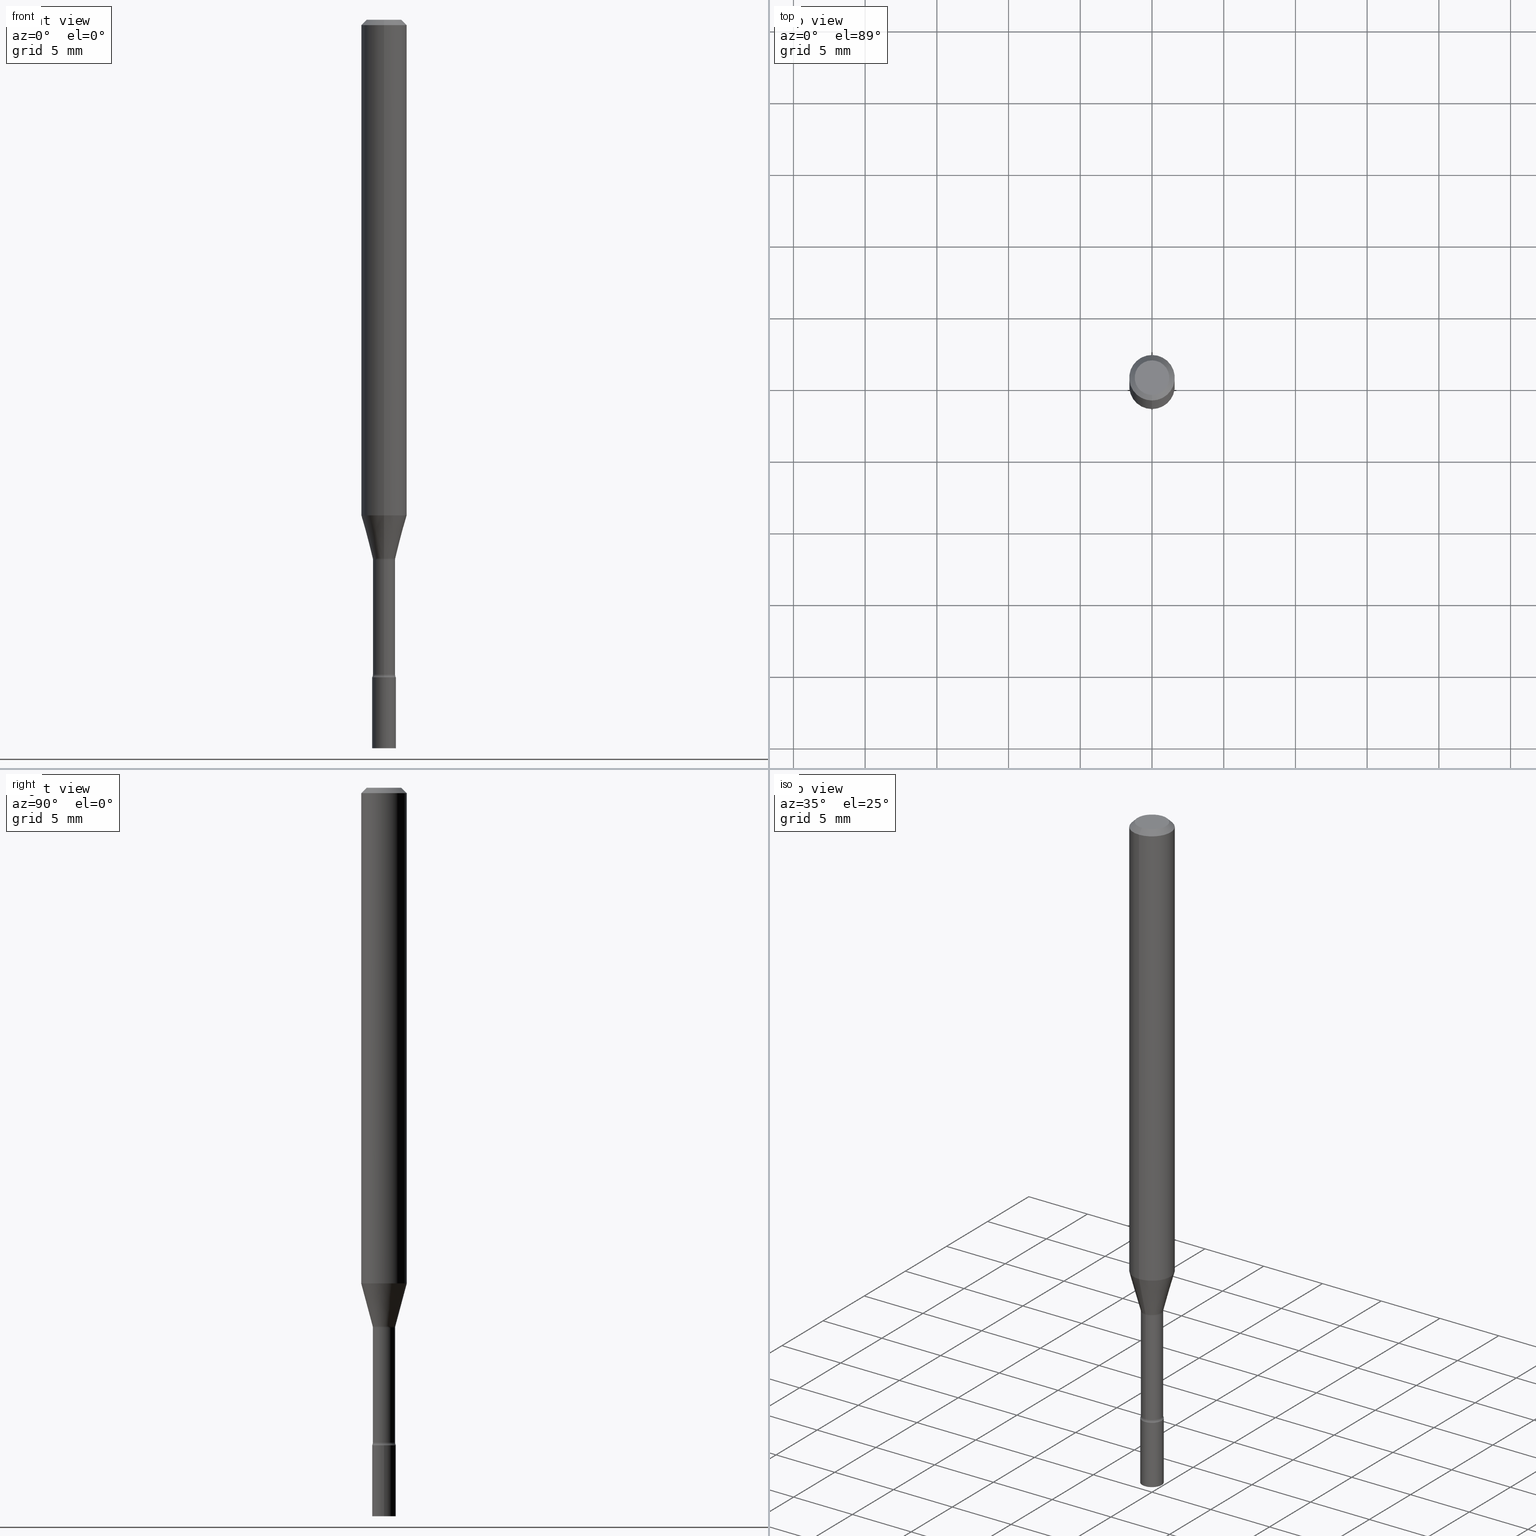
[diagram: canonical four-view strip — front | top / right | iso, engineering-drawing reading convention]
A machine part, canonical four-view strip (front | top / right | iso — engineering-drawing reading convention). The complete STEP part file that produces these views, byte-faithful:
ISO-10303-21;
HEADER;
FILE_DESCRIPTION (( 'STEP AP203' ),
    '1' );
FILE_NAME ('09381.STEP',
    '2024-03-08T23:32:06',
    ( '' ),
    ( '' ),
    'SwSTEP 2.0',
    'SolidWorks 2023',
    '' );
FILE_SCHEMA (( 'CONFIG_CONTROL_DESIGN' ));
ENDSEC;

DATA;
#1 = APPROVAL_DATE_TIME ( #289, #374 ) ;
#2 = DIRECTION ( 'NONE',  ( -2.445806492688776784E-29, 3.490997752550010367E-15, 1.000000000000000000 ) ) ;
#3 = EDGE_LOOP ( 'NONE', ( #406, #186, #35, #179 ) ) ;
#4 = CARTESIAN_POINT ( 'NONE',  ( 4.414071195164171423E-29, -6.302123816611877952E-15, -1.804999999999999938 ) ) ;
#5 = PERSON_AND_ORGANIZATION ( #212, #377 ) ;
#6 = APPROVAL_PERSON_ORGANIZATION ( #5, #279, #87 ) ;
#7 = DIRECTION ( 'NONE',  ( 1.000000000000000000, -6.982962677686265922E-15, 4.876176775795935793E-29 ) ) ;
#8 = APPROVAL_ROLE ( '' ) ;
#9 = DIRECTION ( 'NONE',  ( -1.000000000000000000, 6.982962677686265922E-15, -4.883557194083112340E-29 ) ) ;
#10 = FACE_OUTER_BOUND ( 'NONE', #286, .T. ) ;
#11 = VERTEX_POINT ( 'NONE', #27 ) ;
#12 = CARTESIAN_POINT ( 'NONE',  ( 3.624623557180060645E-29, -5.173570652371943867E-15, -1.481974787463811394 ) ) ;
#13 = AXIS2_PLACEMENT_3D ( 'NONE', #170, #92, #332 ) ;
#14 = ORIENTED_EDGE ( 'NONE', *, *, #329, .T. ) ;
#15 = ADVANCED_FACE ( 'NONE', ( #234 ), #114, .T. ) ;
#16 = DIRECTION ( 'NONE',  ( 1.000000000000000000, -6.982962677686258033E-15, 0.000000000000000000 ) ) ;
#17 = VERTEX_POINT ( 'NONE', #512 ) ;
#18 = DIRECTION ( 'NONE',  ( -2.445806492688777345E-29, 3.490997752550009973E-15, 1.000000000000000000 ) ) ;
#19 = ORIENTED_EDGE ( 'NONE', *, *, #74, .F. ) ;
#20 = DIRECTION ( 'NONE',  ( -6.982962677686265133E-15, -1.000000000000000000, 0.000000000000000000 ) ) ;
#21 = ORIENTED_EDGE ( 'NONE', *, *, #323, .T. ) ;
#22 = TOROIDAL_SURFACE ( 'NONE', #174, 0.04555000000000000021, 0.01500000000000002547 ) ;
#23 = APPLICATION_PROTOCOL_DEFINITION ( 'international standard', 'config_control_design', 1994, #482 ) ;
#24 = EDGE_CURVE ( 'NONE', #17, #227, #491, .T. ) ;
#25 = ORIENTED_EDGE ( 'NONE', *, *, #296, .F. ) ;
#26 = DIRECTION ( 'NONE',  ( 1.000000000000000000, -6.982962677686258033E-15, 0.000000000000000000 ) ) ;
#27 = CARTESIAN_POINT ( 'NONE',  ( 2.309263891220770403E-16, 0.03249999999999374917, -1.804999999999999938 ) ) ;
#28 = CARTESIAN_POINT ( 'NONE',  ( 4.414071195164171423E-29, -6.302123816611877952E-15, -1.804999999999999938 ) ) ;
#29 = DIRECTION ( 'NONE',  ( 1.000000000000000000, -6.982962677686258033E-15, 0.000000000000000000 ) ) ;
#30 = VECTOR ( 'NONE', #249, 39.37007874015748143 ) ;
#31 = AXIS2_PLACEMENT_3D ( 'NONE', #34, #391, #152 ) ;
#32 = EDGE_CURVE ( 'NONE', #239, #11, #173, .T. ) ;
#33 = MANIFOLD_SOLID_BREP ( 'Body-Move/Copy2[2]', #310 ) ;
#34 = CARTESIAN_POINT ( 'NONE',  ( 0.000000000000000000, 0.000000000000000000, 0.000000000000000000 ) ) ;
#35 = ORIENTED_EDGE ( 'NONE', *, *, #143, .T. ) ;
#36 = CC_DESIGN_PERSON_AND_ORGANIZATION_ASSIGNMENT ( #430, #464, ( #159 ) ) ;
#37 = PERSON_AND_ORGANIZATION_ROLE ( 'design_owner' ) ;
#38 = DIRECTION ( 'NONE',  ( -2.445468806185136597E-29, 3.491481338843145583E-15, 1.000000000000000000 ) ) ;
#39 = SHAPE_DEFINITION_REPRESENTATION ( #382, #67 ) ;
#40 = DIRECTION ( 'NONE',  ( -6.982962677686265922E-15, -1.000000000000000000, 0.000000000000000000 ) ) ;
#41 =( GEOMETRIC_REPRESENTATION_CONTEXT ( 3 ) GLOBAL_UNCERTAINTY_ASSIGNED_CONTEXT ( ( #208 ) ) GLOBAL_UNIT_ASSIGNED_CONTEXT ( ( #506, #505, #189 ) ) REPRESENTATION_CONTEXT ( 'NONE', 'WORKASPACE' ) );
#42 = PERSON_AND_ORGANIZATION ( #212, #377 ) ;
#43 = APPROVAL ( #116, 'UNSPECIFIED' ) ;
#44 = DIRECTION ( 'NONE',  ( 2.438088387897960049E-29, -3.491481338843145188E-15, -1.000000000000000000 ) ) ;
#45 = CARTESIAN_POINT ( 'NONE',  ( 4.364351673553919652E-16, 0.06249999999999995143, -0.01500000000000024751 ) ) ;
#46 = CARTESIAN_POINT ( 'NONE',  ( 2.207024792658457989E-16, 0.03106111260565874721, -1.478092501787273694 ) ) ;
#47 = ORIENTED_EDGE ( 'NONE', *, *, #314, .F. ) ;
#48 = AXIS2_PLACEMENT_3D ( 'NONE', #272, #397, #465 ) ;
#49 = CIRCLE ( 'NONE', #334, 0.04749999999999999362 ) ;
#50 = DESIGN_CONTEXT ( 'detailed design', #401, 'design' ) ;
#51 = DIRECTION ( 'NONE',  ( -2.445468806185136597E-29, 3.491481338843145583E-15, 1.000000000000000000 ) ) ;
#52 = ORIENTED_EDGE ( 'NONE', *, *, #266, .F. ) ;
#53 = LINE ( 'NONE', #61, #77 ) ;
#54 = FACE_OUTER_BOUND ( 'NONE', #471, .T. ) ;
#55 = ADVANCED_FACE ( 'NONE', ( #395 ), #473, .F. ) ;
#56 = ORIENTED_EDGE ( 'NONE', *, *, #390, .T. ) ;
#57 = AXIS2_PLACEMENT_3D ( 'NONE', #484, #44, #243 ) ;
#58 = CARTESIAN_POINT ( 'NONE',  ( -4.364351673553916201E-16, -0.06250000000000000000, 2.181873595343755987E-16 ) ) ;
#59 = CIRCLE ( 'NONE', #368, 0.03055000000000000077 ) ;
#60 = ORIENTED_EDGE ( 'NONE', *, *, #365, .T. ) ;
#61 = CARTESIAN_POINT ( 'NONE',  ( -4.287811248607203282E-16, -0.06250000000000005551, -0.01499999999999981209 ) ) ;
#62 = EDGE_LOOP ( 'NONE', ( #112, #188, #218, #498 ) ) ;
#63 = LINE ( 'NONE', #58, #107 ) ;
#64 = ORIENTED_EDGE ( 'NONE', *, *, #360, .T. ) ;
#65 = PRODUCT ( '09381', '09381', '', ( #113 ) ) ;
#66 = EDGE_CURVE ( 'NONE', #379, #99, #149, .T. ) ;
#67 = ADVANCED_BREP_SHAPE_REPRESENTATION ( '09381', ( #223, #33, #31 ), #41 ) ;
#68 = EDGE_LOOP ( 'NONE', ( #245, #412, #446, #388 ) ) ;
#69 = AXIS2_PLACEMENT_3D ( 'NONE', #485, #127, #290 ) ;
#70 = LOCAL_TIME ( 18, 32, 6.000000000000000000, #480 ) ;
#71 = PLANE ( 'NONE',  #416 ) ;
#72 = DIRECTION ( 'NONE',  ( -2.445806492688777345E-29, 3.490997752550009973E-15, 1.000000000000000000 ) ) ;
#73 = ORIENTED_EDGE ( 'NONE', *, *, #329, .F. ) ;
#74 = EDGE_CURVE ( 'NONE', #257, #453, #192, .T. ) ;
#75 = CARTESIAN_POINT ( 'NONE',  ( -0.03250000000000000111, -6.411616858027052188E-15, -1.804999999999999938 ) ) ;
#76 = CONICAL_SURFACE ( 'NONE', #432, 0.03106111260566390975, 0.2617993877991491858 ) ;
#77 = VECTOR ( 'NONE', #255, 39.37007874015748143 ) ;
#78 = ORIENTED_EDGE ( 'NONE', *, *, #256, .T. ) ;
#79 = DIRECTION ( 'NONE',  ( -6.982962677686266711E-15, -1.000000000000000000, 3.490997752550010367E-15 ) ) ;
#80 = ADVANCED_FACE ( 'NONE', ( #241 ), #275, .F. ) ;
#81 = DIRECTION ( 'NONE',  ( 1.839019923739592821E-15, 0.2588190451025239036, 0.9659258262890675351 ) ) ;
#82 = EDGE_LOOP ( 'NONE', ( #339, #78, #177, #140 ) ) ;
#83 = CARTESIAN_POINT ( 'NONE',  ( 0.03250000000000000111, -7.209908964711093729E-15, -2.000000000000000000 ) ) ;
#84 = CALENDAR_DATE ( 2024, 8, 3 ) ;
#85 = DIRECTION ( 'NONE',  ( -6.982962677686265922E-15, -1.000000000000000000, 3.483106191921935554E-15 ) ) ;
#86 = EDGE_CURVE ( 'NONE', #169, #135, #501, .T. ) ;
#87 = APPROVAL_ROLE ( '' ) ;
#88 = DIRECTION ( 'NONE',  ( -6.982962677686265922E-15, -1.000000000000000000, 3.490997752550009579E-15 ) ) ;
#89 = ORIENTED_EDGE ( 'NONE', *, *, #172, .T. ) ;
#90 = VECTOR ( 'NONE', #410, 39.37007874015748143 ) ;
#91 = LINE ( 'NONE', #45, #415 ) ;
#92 = DIRECTION ( 'NONE',  ( 2.445806492688777345E-29, -3.490997752550009973E-15, -1.000000000000000000 ) ) ;
#93 = ORIENTED_EDGE ( 'NONE', *, *, #198, .T. ) ;
#94 = CARTESIAN_POINT ( 'NONE',  ( 4.890937612370273194E-29, -6.982962677686291165E-15, -2.000000000000000000 ) ) ;
#95 = ORIENTED_EDGE ( 'NONE', *, *, #109, .T. ) ;
#96 = AXIS2_PLACEMENT_3D ( 'NONE', #153, #319, #79 ) ;
#97 = CARTESIAN_POINT ( 'NONE',  ( 4.440892098500956497E-16, 0.06249999999999521910, -1.360760976698174973 ) ) ;
#98 = SECURITY_CLASSIFICATION ( '', '', #207 ) ;
#99 = VERTEX_POINT ( 'NONE', #315 ) ;
#100 = DIRECTION ( 'NONE',  ( -6.982962677686265922E-15, -1.000000000000000000, 3.490997752550009973E-15 ) ) ;
#101 = ORIENTED_EDGE ( 'NONE', *, *, #32, .F. ) ;
#102 = EDGE_CURVE ( 'NONE', #11, #239, #219, .T. ) ;
#103 = DIRECTION ( 'NONE',  ( -6.982962677686265922E-15, -1.000000000000000000, 0.000000000000000000 ) ) ;
#104 = ORIENTED_EDGE ( 'NONE', *, *, #198, .F. ) ;
#105 = DIRECTION ( 'NONE',  ( -2.445806492688777345E-29, 3.490997752550009973E-15, 1.000000000000000000 ) ) ;
#106 = ORIENTED_EDGE ( 'NONE', *, *, #109, .F. ) ;
#107 = VECTOR ( 'NONE', #221, 39.37007874015748143 ) ;
#108 = DIRECTION ( 'NONE',  ( 2.445806492688776784E-29, -3.490997752550010367E-15, -1.000000000000000000 ) ) ;
#109 = EDGE_CURVE ( 'NONE', #379, #488, #392, .T. ) ;
#110 = DIRECTION ( 'NONE',  ( -2.445806492688777345E-29, 3.490997752550009973E-15, 1.000000000000000000 ) ) ;
#111 = APPROVAL_ROLE ( '' ) ;
#112 = ORIENTED_EDGE ( 'NONE', *, *, #451, .F. ) ;
#113 = MECHANICAL_CONTEXT ( 'NONE', #482, 'mechanical' ) ;
#114 = CYLINDRICAL_SURFACE ( 'NONE', #318, 0.06250000000000000000 ) ;
#115 = CONICAL_SURFACE ( 'NONE', #492, 0.03106111260566390975, 0.2617993877991491858 ) ;
#116 = APPROVAL_STATUS ( 'not_yet_approved' ) ;
#117 = PRODUCT_RELATED_PRODUCT_CATEGORY ( 'detail', '', ( #65 ) ) ;
#118 = DATE_TIME_ROLE ( 'classification_date' ) ;
#119 = FACE_OUTER_BOUND ( 'NONE', #455, .T. ) ;
#120 = PERSON_AND_ORGANIZATION ( #212, #377 ) ;
#121 = DIRECTION ( 'NONE',  ( -1.807323732225322645E-15, -0.2588190451025171313, 0.9659258262890693114 ) ) ;
#122 = ORIENTED_EDGE ( 'NONE', *, *, #350, .F. ) ;
#123 = AXIS2_PLACEMENT_3D ( 'NONE', #252, #454, #184 ) ;
#124 = DATE_TIME_ROLE ( 'creation_date' ) ;
#125 = DIRECTION ( 'NONE',  ( 4.937700262164548042E-15, 0.7071067811865451302, -0.7071067811865499042 ) ) ;
#126 = EDGE_CURVE ( 'NONE', #169, #278, #355, .T. ) ;
#127 = DIRECTION ( 'NONE',  ( -2.445806492688777345E-29, 3.490997752550009973E-15, 1.000000000000000000 ) ) ;
#128 = ORIENTED_EDGE ( 'NONE', *, *, #305, .F. ) ;
#129 = CARTESIAN_POINT ( 'NONE',  ( -3.180739499685659028E-16, -0.04555000000000634236, -1.797604224178626975 ) ) ;
#130 = CIRCLE ( 'NONE', #165, 0.01500000000000007924 ) ;
#131 = CIRCLE ( 'NONE', #123, 0.06250000000000000000 ) ;
#132 = CARTESIAN_POINT ( 'NONE',  ( 3.615128237665912091E-29, -5.160017601800393003E-15, -1.478092501787273694 ) ) ;
#133 = VERTEX_POINT ( 'NONE', #515 ) ;
#134 = CARTESIAN_POINT ( 'NONE',  ( 3.624123114295598298E-29, -5.174287315065934180E-15, -1.481974787463811394 ) ) ;
#135 = VERTEX_POINT ( 'NONE', #312 ) ;
#136 = DIRECTION ( 'NONE',  ( -2.445806492688777345E-29, 3.490997752550009973E-15, 1.000000000000000000 ) ) ;
#137 = VERTEX_POINT ( 'NONE', #75 ) ;
#138 = VECTOR ( 'NONE', #276, 39.37007874015748143 ) ;
#139 = AXIS2_PLACEMENT_3D ( 'NONE', #420, #175, #380 ) ;
#140 = ORIENTED_EDGE ( 'NONE', *, *, #126, .F. ) ;
#141 = CARTESIAN_POINT ( 'NONE',  ( 3.668709739033173181E-31, -5.236496628825025190E-17, -0.01500000000000003067 ) ) ;
#142 = VERTEX_POINT ( 'NONE', #196 ) ;
#143 = EDGE_CURVE ( 'NONE', #298, #278, #285, .T. ) ;
#144 = CALENDAR_DATE ( 2024, 8, 3 ) ;
#145 = DIRECTION ( 'NONE',  ( -2.445806492688777345E-29, 3.490997752550010367E-15, 1.000000000000000000 ) ) ;
#146 = EDGE_CURVE ( 'NONE', #298, #99, #270, .T. ) ;
#147 = DIRECTION ( 'NONE',  ( -6.982962677686265922E-15, -1.000000000000000000, 0.000000000000000000 ) ) ;
#148 = DIRECTION ( 'NONE',  ( -2.445806492688777345E-29, 3.490997752550009973E-15, 1.000000000000000000 ) ) ;
#149 = CIRCLE ( 'NONE', #229, 0.06250000000000000000 ) ;
#150 = CIRCLE ( 'NONE', #277, 0.03250000000000000111 ) ;
#151 = CC_DESIGN_DATE_AND_TIME_ASSIGNMENT ( #423, #124, ( #159 ) ) ;
#152 = DIRECTION ( 'NONE',  ( 1.000000000000000000, 0.000000000000000000, 0.000000000000000000 ) ) ;
#153 = CARTESIAN_POINT ( 'NONE',  ( 7.077401210494453519E-46, -1.010185875030906767E-31, -2.893688127679296036E-17 ) ) ;
#154 = CARTESIAN_POINT ( 'NONE',  ( 4.395985056095465532E-29, -6.276301603345287291E-15, -1.797604224178627197 ) ) ;
#155 = CARTESIAN_POINT ( 'NONE',  ( 0.000000000000000000, 0.000000000000000000, 0.000000000000000000 ) ) ;
#156 = ADVANCED_FACE ( 'NONE', ( #359 ), #405, .T. ) ;
#157 = CC_DESIGN_APPROVAL ( #43, ( #159 ) ) ;
#158 = DIRECTION ( 'NONE',  ( 1.000000000000000000, -7.105427357601001070E-15, 4.926309586318022696E-29 ) ) ;
#159 = PRODUCT_DEFINITION ( 'UNKNOWN', '', #425, #50 ) ;
#160 = DIRECTION ( 'NONE',  ( 1.000000000000000000, -6.982962677686265922E-15, 4.876176775795935232E-29 ) ) ;
#161 = ORIENTED_EDGE ( 'NONE', *, *, #204, .T. ) ;
#162 = ADVANCED_FACE ( 'NONE', ( #371 ), #342, .T. ) ;
#163 = PERSON_AND_ORGANIZATION ( #212, #377 ) ;
#164 = LINE ( 'NONE', #251, #90 ) ;
#165 = AXIS2_PLACEMENT_3D ( 'NONE', #129, #9, #364 ) ;
#166 = AXIS2_PLACEMENT_3D ( 'NONE', #94, #497, #503 ) ;
#167 = CYLINDRICAL_SURFACE ( 'NONE', #293, 0.03250000000000000111 ) ;
#168 = LINE ( 'NONE', #321, #30 ) ;
#169 = VERTEX_POINT ( 'NONE', #441 ) ;
#170 = CARTESIAN_POINT ( 'NONE',  ( 3.668709739033173181E-31, -5.236496628825025190E-17, -0.01500000000000003067 ) ) ;
#171 = ORIENTED_EDGE ( 'NONE', *, *, #143, .F. ) ;
#172 = EDGE_CURVE ( 'NONE', #169, #239, #130, .T. ) ;
#173 = CIRCLE ( 'NONE', #301, 0.03250000000000000111 ) ;
#174 = AXIS2_PLACEMENT_3D ( 'NONE', #134, #335, #100 ) ;
#175 = DIRECTION ( 'NONE',  ( -2.445806492688777345E-29, 3.490997752550009973E-15, 1.000000000000000000 ) ) ;
#176 = CC_DESIGN_APPROVAL ( #279, ( #98 ) ) ;
#177 = ORIENTED_EDGE ( 'NONE', *, *, #333, .F. ) ;
#178 = LINE ( 'NONE', #456, #483 ) ;
#179 = ORIENTED_EDGE ( 'NONE', *, *, #333, .T. ) ;
#180 = ADVANCED_FACE ( 'NONE', ( #119 ), #214, .T. ) ;
#181 = DIRECTION ( 'NONE',  ( 1.000000000000000000, -7.105427357601001070E-15, 4.926309586318022696E-29 ) ) ;
#182 = EDGE_LOOP ( 'NONE', ( #341, #95, #381, #47 ) ) ;
#183 = AXIS2_PLACEMENT_3D ( 'NONE', #201, #445, #85 ) ;
#184 = DIRECTION ( 'NONE',  ( -6.982962677686265922E-15, -1.000000000000000000, 4.370956789862821150E-15 ) ) ;
#185 = AXIS2_PLACEMENT_3D ( 'NONE', #383, #216, #373 ) ;
#186 = ORIENTED_EDGE ( 'NONE', *, *, #472, .F. ) ;
#187 = LENGTH_MEASURE_WITH_UNIT ( LENGTH_MEASURE( 0.02539999999999999897 ), #191 );
#188 = ORIENTED_EDGE ( 'NONE', *, *, #305, .T. ) ;
#189 =( NAMED_UNIT ( * ) SI_UNIT ( $, .STERADIAN. ) SOLID_ANGLE_UNIT ( ) );
#190 = CARTESIAN_POINT ( 'NONE',  ( 3.624123114295598298E-29, -5.174287315065934180E-15, -1.481974787463811394 ) ) ;
#191 =( LENGTH_UNIT ( ) NAMED_UNIT ( * ) SI_UNIT ( $, .METRE. ) );
#192 = CIRCLE ( 'NONE', #96, 0.04749999999999999362 ) ;
#193 = DIRECTION ( 'NONE',  ( -2.445806492688777345E-29, 3.490997752550009973E-15, 1.000000000000000000 ) ) ;
#194 = TOROIDAL_SURFACE ( 'NONE', #139, 0.04555000000000006960, 0.01500000000000008271 ) ;
#195 = DIRECTION ( 'NONE',  ( 6.982962677686265922E-15, 1.000000000000000000, -3.490997752550010367E-15 ) ) ;
#196 = CARTESIAN_POINT ( 'NONE',  ( 2.170708057747545912E-16, 0.03054999999999482088, -1.481974787463811394 ) ) ;
#197 = DIRECTION ( 'NONE',  ( -6.982962677686265922E-15, -1.000000000000000000, 3.490997752550009973E-15 ) ) ;
#198 = EDGE_CURVE ( 'NONE', #257, #488, #91, .T. ) ;
#199 = DIRECTION ( 'NONE',  ( -6.982962677686265922E-15, -1.000000000000000000, 0.000000000000000000 ) ) ;
#200 = DATE_AND_TIME ( #213, #246 ) ;
#201 = CARTESIAN_POINT ( 'NONE',  ( 3.668709739033173181E-31, -5.236496628825025190E-17, -0.01500000000000003067 ) ) ;
#202 = CARTESIAN_POINT ( 'NONE',  ( -2.168985900527253100E-16, -0.03106111260566906881, -1.478092501787273694 ) ) ;
#203 = ORIENTED_EDGE ( 'NONE', *, *, #256, .F. ) ;
#204 = EDGE_CURVE ( 'NONE', #17, #137, #168, .T. ) ;
#205 = FACE_OUTER_BOUND ( 'NONE', #68, .T. ) ;
#206 = CC_DESIGN_PERSON_AND_ORGANIZATION_ASSIGNMENT ( #120, #404, ( #425 ) ) ;
#207 = SECURITY_CLASSIFICATION_LEVEL ( 'unclassified' ) ;
#208 = UNCERTAINTY_MEASURE_WITH_UNIT (LENGTH_MEASURE( 1.000000000000000082E-05 ), #506, 'distance_accuracy_value', 'NONE');
#209 = CARTESIAN_POINT ( 'NONE',  ( -2.269462870247597680E-16, -0.03250000000000634326, -1.804999999999999938 ) ) ;
#210 = CIRCLE ( 'NONE', #183, 0.06250000000000000000 ) ;
#211 = APPROVAL_PERSON_ORGANIZATION ( #469, #43, #111 ) ;
#212 = PERSON ( 'UNSPECIFIED', 'UNSPECIFIED', 'UNSPECIFIED', ('UNSPECIFIED'), ('UNSPECIFIED'), ('UNSPECIFIED') ) ;
#213 = CALENDAR_DATE ( 2024, 8, 3 ) ;
#214 = PLANE ( 'NONE',  #57 ) ;
#215 = ORIENTED_EDGE ( 'NONE', *, *, #360, .F. ) ;
#216 = DIRECTION ( 'NONE',  ( -2.445468806185136597E-29, 3.491481338843145583E-15, 1.000000000000000000 ) ) ;
#217 = CARTESIAN_POINT ( 'NONE',  ( 3.236522161387617759E-16, 0.04554999999999483073, -1.481974787463811616 ) ) ;
#218 = ORIENTED_EDGE ( 'NONE', *, *, #102, .T. ) ;
#219 = CIRCLE ( 'NONE', #449, 0.03250000000000000111 ) ;
#220 = CONICAL_SURFACE ( 'NONE', #13, 0.06250000000000000000, 0.7853981633974483900 ) ;
#221 = DIRECTION ( 'NONE',  ( -2.445806492688777345E-29, 3.490997752550010367E-15, 1.000000000000000000 ) ) ;
#222 = EDGE_LOOP ( 'NONE', ( #336, #21 ) ) ;
#223 = MANIFOLD_SOLID_BREP ( 'Body-Move/Copy2[1]', #376 ) ;
#224 = DIRECTION ( 'NONE',  ( -2.445468806185136877E-29, 3.491481338843145188E-15, 1.000000000000000000 ) ) ;
#225 = ORIENTED_EDGE ( 'NONE', *, *, #24, .T. ) ;
#226 = FACE_OUTER_BOUND ( 'NONE', #331, .T. ) ;
#227 = VERTEX_POINT ( 'NONE', #83 ) ;
#228 = CC_DESIGN_DATE_AND_TIME_ASSIGNMENT ( #200, #118, ( #98 ) ) ;
#229 = AXIS2_PLACEMENT_3D ( 'NONE', #353, #110, #507 ) ;
#230 = DIRECTION ( 'NONE',  ( -2.445806492688777345E-29, 3.490997752550009973E-15, 1.000000000000000000 ) ) ;
#231 = AXIS2_PLACEMENT_3D ( 'NONE', #217, #181, #494 ) ;
#232 = ORIENTED_EDGE ( 'NONE', *, *, #296, .T. ) ;
#233 = CARTESIAN_POINT ( 'NONE',  ( 3.316907271900976096E-16, 0.04749999999999999362, -1.802908338845219502E-16 ) ) ;
#234 = FACE_OUTER_BOUND ( 'NONE', #182, .T. ) ;
#235 = CC_DESIGN_PERSON_AND_ORGANIZATION_ASSIGNMENT ( #363, #280, ( #98 ) ) ;
#236 = DIRECTION ( 'NONE',  ( -6.982962677686265922E-15, -1.000000000000000000, 3.490997752550009973E-15 ) ) ;
#237 = CARTESIAN_POINT ( 'NONE',  ( 3.615128237665912091E-29, -5.160017601800393003E-15, -1.478092501787273694 ) ) ;
#238 = AXIS2_PLACEMENT_3D ( 'NONE', #402, #324, #247 ) ;
#239 = VERTEX_POINT ( 'NONE', #209 ) ;
#240 = ORIENTED_EDGE ( 'NONE', *, *, #345, .T. ) ;
#241 = FACE_OUTER_BOUND ( 'NONE', #62, .T. ) ;
#242 = COORDINATED_UNIVERSAL_TIME_OFFSET ( 5, 0, .BEHIND. ) ;
#243 = DIRECTION ( 'NONE',  ( -1.000000000000000000, 6.982962677686265922E-15, -4.876176775795935793E-29 ) ) ;
#244 = ADVANCED_FACE ( 'NONE', ( #205 ), #76, .T. ) ;
#245 = ORIENTED_EDGE ( 'NONE', *, *, #472, .T. ) ;
#246 = LOCAL_TIME ( 18, 32, 6.000000000000000000, #366 ) ;
#247 = DIRECTION ( 'NONE',  ( 6.982962677686265922E-15, 1.000000000000000000, -3.483106191921935554E-15 ) ) ;
#248 = CARTESIAN_POINT ( 'NONE',  ( -2.133295098032791645E-16, -0.03055000000000517371, -1.481974787463811394 ) ) ;
#249 = DIRECTION ( 'NONE',  ( -2.445468806185136877E-29, 3.491481338843145188E-15, 1.000000000000000000 ) ) ;
#250 = ADVANCED_FACE ( 'NONE', ( #292 ), #481, .T. ) ;
#251 = CARTESIAN_POINT ( 'NONE',  ( 2.170708057747105136E-16, 0.03054999999999999036, -1.066499813404027654E-16 ) ) ;
#252 = CARTESIAN_POINT ( 'NONE',  ( 3.328158031805917225E-29, -4.750413511411083596E-15, -1.360760976698174529 ) ) ;
#253 = CC_DESIGN_PERSON_AND_ORGANIZATION_ASSIGNMENT ( #511, #37, ( #65 ) ) ;
#254 = ORIENTED_EDGE ( 'NONE', *, *, #32, .T. ) ;
#255 = DIRECTION ( 'NONE',  ( -4.851104656540964275E-15, -0.7071067811865500152, -0.7071067811865450192 ) ) ;
#256 = EDGE_CURVE ( 'NONE', #135, #142, #164, .T. ) ;
#257 = VERTEX_POINT ( 'NONE', #288 ) ;
#258 = AXIS2_PLACEMENT_3D ( 'NONE', #389, #38, #29 ) ;
#259 = CIRCLE ( 'NONE', #443, 0.06250000000000000000 ) ;
#260 = DIRECTION ( 'NONE',  ( -6.982962677686265922E-15, -1.000000000000000000, 3.483106191921935554E-15 ) ) ;
#261 = ORIENTED_EDGE ( 'NONE', *, *, #66, .T. ) ;
#262 = CYLINDRICAL_SURFACE ( 'NONE', #185, 0.03250000000000000111 ) ;
#263 = EDGE_LOOP ( 'NONE', ( #439, #225, #60, #215 ) ) ;
#264 = DIRECTION ( 'NONE',  ( -6.982962677686266711E-15, -1.000000000000000000, 3.490997752550010367E-15 ) ) ;
#265 = EDGE_LOOP ( 'NONE', ( #203, #375, #414, #73 ) ) ;
#266 = EDGE_CURVE ( 'NONE', #424, #379, #283, .T. ) ;
#267 = CARTESIAN_POINT ( 'NONE',  ( 4.440892098500960442E-16, 0.06249999999999995143, -0.01500000000000024751 ) ) ;
#268 = AXIS2_PLACEMENT_3D ( 'NONE', #132, #452, #411 ) ;
#269 = CARTESIAN_POINT ( 'NONE',  ( 4.414680719303243494E-29, -6.301250943352767922E-15, -1.804999999999999938 ) ) ;
#270 = LINE ( 'NONE', #322, #518 ) ;
#271 = COORDINATED_UNIVERSAL_TIME_OFFSET ( 5, 0, .BEHIND. ) ;
#272 = CARTESIAN_POINT ( 'NONE',  ( 4.396592082780858738E-29, -6.275432306581991000E-15, -1.797604224178627197 ) ) ;
#273 = EDGE_CURVE ( 'NONE', #488, #463, #210, .T. ) ;
#274 = FACE_OUTER_BOUND ( 'NONE', #222, .T. ) ;
#275 = TOROIDAL_SURFACE ( 'NONE', #440, 0.04555000000000006960, 0.01500000000000008271 ) ;
#276 = DIRECTION ( 'NONE',  ( -2.445806492688777345E-29, 3.490997752550010367E-15, 1.000000000000000000 ) ) ;
#277 = AXIS2_PLACEMENT_3D ( 'NONE', #299, #413, #16 ) ;
#278 = VERTEX_POINT ( 'NONE', #248 ) ;
#279 = APPROVAL ( #370, 'UNSPECIFIED' ) ;
#280 = PERSON_AND_ORGANIZATION_ROLE ( 'classification_officer' ) ;
#281 = DIRECTION ( 'NONE',  ( 7.105427357601001859E-15, 1.000000000000000000, 0.000000000000000000 ) ) ;
#282 = DATE_AND_TIME ( #477, #327 ) ;
#283 = LINE ( 'NONE', #46, #408 ) ;
#284 = AXIS2_PLACEMENT_3D ( 'NONE', #487, #478, #88 ) ;
#285 = CIRCLE ( 'NONE', #508, 0.01500000000000002720 ) ;
#286 = EDGE_LOOP ( 'NONE', ( #346, #461, #56, #104 ) ) ;
#287 = AXIS2_PLACEMENT_3D ( 'NONE', #351, #354, #475 ) ;
#288 = CARTESIAN_POINT ( 'NONE',  ( 3.840629472727447874E-16, 0.04749999999999999362, -1.947592745229184365E-16 ) ) ;
#289 = DATE_AND_TIME ( #84, #70 ) ;
#290 = DIRECTION ( 'NONE',  ( -6.982962677686265922E-15, -1.000000000000000000, 0.000000000000000000 ) ) ;
#291 = ADVANCED_FACE ( 'NONE', ( #367 ), #167, .T. ) ;
#292 = FACE_OUTER_BOUND ( 'NONE', #295, .T. ) ;
#293 = AXIS2_PLACEMENT_3D ( 'NONE', #328, #51, #160 ) ;
#294 = DIRECTION ( 'NONE',  ( -2.445806492688777345E-29, 3.490997752550009973E-15, 1.000000000000000000 ) ) ;
#295 = EDGE_LOOP ( 'NONE', ( #458, #64 ) ) ;
#296 = EDGE_CURVE ( 'NONE', #424, #298, #385, .T. ) ;
#297 = DIRECTION ( 'NONE',  ( -2.445806492688777345E-29, 3.490997752550009973E-15, 1.000000000000000000 ) ) ;
#298 = VERTEX_POINT ( 'NONE', #202 ) ;
#299 = CARTESIAN_POINT ( 'NONE',  ( 4.414071195164171423E-29, -6.302123816611877952E-15, -1.804999999999999938 ) ) ;
#300 = ORIENTED_EDGE ( 'NONE', *, *, #66, .F. ) ;
#301 = AXIS2_PLACEMENT_3D ( 'NONE', #269, #193, #199 ) ;
#302 = CIRCLE ( 'NONE', #466, 0.01500000000000007924 ) ;
#303 = DIRECTION ( 'NONE',  ( -6.982962677686265922E-15, -1.000000000000000000, 3.490997752550010367E-15 ) ) ;
#304 = EDGE_LOOP ( 'NONE', ( #122, #19, #93, #306 ) ) ;
#305 = EDGE_CURVE ( 'NONE', #135, #11, #302, .T. ) ;
#306 = ORIENTED_EDGE ( 'NONE', *, *, #273, .T. ) ;
#307 = ADVANCED_FACE ( 'NONE', ( #398 ), #438, .F. ) ;
#308 = DATE_AND_TIME ( #144, #386 ) ;
#309 = DIRECTION ( 'NONE',  ( -6.982962677686267499E-15, -1.000000000000000000, 0.000000000000000000 ) ) ;
#310 = CLOSED_SHELL ( 'NONE', ( #427, #520, #80, #457, #15, #244, #479, #156, #162, #514, #307, #419, #496, #55 ) ) ;
#311 = AXIS2_PLACEMENT_3D ( 'NONE', #28, #348, #26 ) ;
#312 = CARTESIAN_POINT ( 'NONE',  ( 2.239985974484157911E-16, 0.03054999999999371066, -1.797604224178627197 ) ) ;
#313 = CYLINDRICAL_SURFACE ( 'NONE', #409, 0.03054999999999999036 ) ;
#314 = EDGE_CURVE ( 'NONE', #99, #463, #63, .T. ) ;
#315 = CARTESIAN_POINT ( 'NONE',  ( -4.364351673553584879E-16, -0.06250000000000477396, -1.360760976698174307 ) ) ;
#316 = CARTESIAN_POINT ( 'NONE',  ( -2.133295098033153535E-16, -0.03054999999999999036, 1.066499813404027654E-16 ) ) ;
#317 = FACE_OUTER_BOUND ( 'NONE', #265, .T. ) ;
#318 = AXIS2_PLACEMENT_3D ( 'NONE', #155, #396, #347 ) ;
#319 = DIRECTION ( 'NONE',  ( -2.445806492688777345E-29, 3.490997752550009973E-15, 1.000000000000000000 ) ) ;
#320 = CIRCLE ( 'NONE', #311, 0.03250000000000000111 ) ;
#321 = CARTESIAN_POINT ( 'NONE',  ( -0.03250000000000000111, 2.309263891220325683E-16, -1.598653904332844407E-30 ) ) ;
#322 = CARTESIAN_POINT ( 'NONE',  ( -2.168985900527253100E-16, -0.03106111260566906881, -1.478092501787273694 ) ) ;
#323 = EDGE_CURVE ( 'NONE', #453, #257, #49, .T. ) ;
#324 = DIRECTION ( 'NONE',  ( 2.445806492688777345E-29, -3.490997752550009973E-15, -1.000000000000000000 ) ) ;
#325 = AXIS2_PLACEMENT_3D ( 'NONE', #4, #448, #7 ) ;
#326 = CC_DESIGN_APPROVAL ( #374, ( #425 ) ) ;
#327 = LOCAL_TIME ( 18, 32, 6.000000000000000000, #242 ) ;
#328 = CARTESIAN_POINT ( 'NONE',  ( 0.000000000000000000, 0.000000000000000000, 0.000000000000000000 ) ) ;
#329 = EDGE_CURVE ( 'NONE', #142, #278, #502, .T. ) ;
#330 = DIRECTION ( 'NONE',  ( -2.445806492688777345E-29, 3.490997752550009973E-15, 1.000000000000000000 ) ) ;
#331 = EDGE_LOOP ( 'NONE', ( #240, #161, #436, #418 ) ) ;
#332 = DIRECTION ( 'NONE',  ( 6.982962677686265922E-15, 1.000000000000000000, -3.483106191921935554E-15 ) ) ;
#333 = EDGE_CURVE ( 'NONE', #278, #142, #59, .T. ) ;
#334 = AXIS2_PLACEMENT_3D ( 'NONE', #378, #18, #264 ) ;
#335 = DIRECTION ( 'NONE',  ( -2.445806492688777345E-29, 3.490997752550009973E-15, 1.000000000000000000 ) ) ;
#336 = ORIENTED_EDGE ( 'NONE', *, *, #74, .T. ) ;
#337 = CC_DESIGN_PERSON_AND_ORGANIZATION_ASSIGNMENT ( #163, #437, ( #425 ) ) ;
#338 = DIRECTION ( 'NONE',  ( -6.982962677686265133E-15, -1.000000000000000000, 0.000000000000000000 ) ) ;
#339 = ORIENTED_EDGE ( 'NONE', *, *, #86, .T. ) ;
#340 = CARTESIAN_POINT ( 'NONE',  ( 3.323958445579708599E-16, 0.03106111260565874721, -1.478092501787273694 ) ) ;
#341 = ORIENTED_EDGE ( 'NONE', *, *, #442, .T. ) ;
#342 = CONICAL_SURFACE ( 'NONE', #238, 0.06250000000000000000, 0.7853981633974483900 ) ;
#343 = CIRCLE ( 'NONE', #231, 0.01500000000000002720 ) ;
#344 = CARTESIAN_POINT ( 'NONE',  ( 4.396592082780858738E-29, -6.275432306581991000E-15, -1.797604224178627197 ) ) ;
#345 = EDGE_CURVE ( 'NONE', #227, #17, #450, .T. ) ;
#346 = ORIENTED_EDGE ( 'NONE', *, *, #323, .F. ) ;
#347 = DIRECTION ( 'NONE',  ( -6.982962677686265922E-15, -1.000000000000000000, 3.490997752550009579E-15 ) ) ;
#348 = DIRECTION ( 'NONE',  ( -2.445468806185136597E-29, 3.491481338843145583E-15, 1.000000000000000000 ) ) ;
#349 = DIRECTION ( 'NONE',  ( -2.445806492688777345E-29, 3.490997752550009973E-15, 1.000000000000000000 ) ) ;
#350 = EDGE_CURVE ( 'NONE', #453, #463, #53, .T. ) ;
#351 = CARTESIAN_POINT ( 'NONE',  ( 0.000000000000000000, 0.000000000000000000, 0.000000000000000000 ) ) ;
#352 = AXIS2_PLACEMENT_3D ( 'NONE', #361, #2, #303 ) ;
#353 = CARTESIAN_POINT ( 'NONE',  ( 3.328158031805917225E-29, -4.750413511411083596E-15, -1.360760976698174529 ) ) ;
#354 = DIRECTION ( 'NONE',  ( -2.445806492688777345E-29, 3.490997752550009973E-15, 1.000000000000000000 ) ) ;
#355 = LINE ( 'NONE', #316, #138 ) ;
#356 = APPROVAL_DATE_TIME ( #308, #43 ) ;
#357 = ORIENTED_EDGE ( 'NONE', *, *, #345, .F. ) ;
#358 = AXIS2_PLACEMENT_3D ( 'NONE', #190, #349, #429 ) ;
#359 = FACE_OUTER_BOUND ( 'NONE', #369, .T. ) ;
#360 = EDGE_CURVE ( 'NONE', #137, #133, #150, .T. ) ;
#361 = CARTESIAN_POINT ( 'NONE',  ( 2.269462870248477753E-16, 0.03249999999999370059, -1.804999999999999938 ) ) ;
#362 = ORIENTED_EDGE ( 'NONE', *, *, #403, .T. ) ;
#363 = PERSON_AND_ORGANIZATION ( #212, #377 ) ;
#364 = DIRECTION ( 'NONE',  ( -6.982962677686267499E-15, -1.000000000000000000, 0.000000000000000000 ) ) ;
#365 = EDGE_CURVE ( 'NONE', #227, #133, #178, .T. ) ;
#366 = COORDINATED_UNIVERSAL_TIME_OFFSET ( 5, 0, .BEHIND. ) ;
#367 = FACE_OUTER_BOUND ( 'NONE', #263, .T. ) ;
#368 = AXIS2_PLACEMENT_3D ( 'NONE', #462, #136, #338 ) ;
#369 = EDGE_LOOP ( 'NONE', ( #106, #261, #493, #500 ) ) ;
#370 = APPROVAL_STATUS ( 'not_yet_approved' ) ;
#371 = FACE_OUTER_BOUND ( 'NONE', #304, .T. ) ;
#372 = CARTESIAN_POINT ( 'NONE',  ( -3.773273898774340269E-16, -0.04749999999999999362, 1.368855119693325158E-16 ) ) ;
#373 = DIRECTION ( 'NONE',  ( 1.000000000000000000, -6.982962677686265922E-15, 4.876176775795935232E-29 ) ) ;
#374 = APPROVAL ( #444, 'UNSPECIFIED' ) ;
#375 = ORIENTED_EDGE ( 'NONE', *, *, #451, .T. ) ;
#376 = CLOSED_SHELL ( 'NONE', ( #435, #250, #291, #180 ) ) ;
#377 = ORGANIZATION ( 'UNSPECIFIED', 'UNSPECIFIED', '' ) ;
#378 = CARTESIAN_POINT ( 'NONE',  ( 7.077401210494453519E-46, -1.010185875030906767E-31, -2.893688127679296036E-17 ) ) ;
#379 = VERTEX_POINT ( 'NONE', #97 ) ;
#380 = DIRECTION ( 'NONE',  ( -6.982962677686265922E-15, -1.000000000000000000, 3.490997752550009973E-15 ) ) ;
#381 = ORIENTED_EDGE ( 'NONE', *, *, #390, .F. ) ;
#382 = PRODUCT_DEFINITION_SHAPE ( 'NONE', 'NONE',  #159 ) ;
#383 = CARTESIAN_POINT ( 'NONE',  ( 0.000000000000000000, 0.000000000000000000, 0.000000000000000000 ) ) ;
#384 = ORIENTED_EDGE ( 'NONE', *, *, #102, .F. ) ;
#385 = CIRCLE ( 'NONE', #69, 0.03106111260566390975 ) ;
#386 = LOCAL_TIME ( 18, 32, 6.000000000000000000, #271 ) ;
#387 = APPLICATION_PROTOCOL_DEFINITION ( 'international standard', 'config_control_design', 1994, #401 ) ;
#388 = ORIENTED_EDGE ( 'NONE', *, *, #146, .F. ) ;
#389 = CARTESIAN_POINT ( 'NONE',  ( 4.890937612370273194E-29, -6.982962677686291165E-15, -2.000000000000000000 ) ) ;
#390 = EDGE_CURVE ( 'NONE', #463, #488, #259, .T. ) ;
#391 = DIRECTION ( 'NONE',  ( 0.000000000000000000, 0.000000000000000000, 1.000000000000000000 ) ) ;
#392 = LINE ( 'NONE', #470, #509 ) ;
#393 = LOCAL_TIME ( 18, 32, 6.000000000000000000, #467 ) ;
#394 = FACE_OUTER_BOUND ( 'NONE', #82, .T. ) ;
#395 = FACE_OUTER_BOUND ( 'NONE', #3, .T. ) ;
#396 = DIRECTION ( 'NONE',  ( -2.445806492688777345E-29, 3.490997752550009973E-15, 1.000000000000000000 ) ) ;
#397 = DIRECTION ( 'NONE',  ( -2.445806492688777345E-29, 3.490997752550009973E-15, 1.000000000000000000 ) ) ;
#398 = FACE_OUTER_BOUND ( 'NONE', #476, .T. ) ;
#399 = CIRCLE ( 'NONE', #268, 0.03106111260566390975 ) ;
#400 = CC_DESIGN_SECURITY_CLASSIFICATION ( #98, ( #425 ) ) ;
#401 = APPLICATION_CONTEXT ( 'configuration controlled 3d designs of mechanical parts and assemblies' ) ;
#402 = CARTESIAN_POINT ( 'NONE',  ( 3.668709739033173181E-31, -5.236496628825025190E-17, -0.01500000000000003067 ) ) ;
#403 = EDGE_CURVE ( 'NONE', #424, #142, #343, .T. ) ;
#404 = PERSON_AND_ORGANIZATION_ROLE ( 'creator' ) ;
#405 = CYLINDRICAL_SURFACE ( 'NONE', #284, 0.06250000000000000000 ) ;
#406 = ORIENTED_EDGE ( 'NONE', *, *, #403, .F. ) ;
#407 = DIRECTION ( 'NONE',  ( -6.982962677686265922E-15, -1.000000000000000000, 0.000000000000000000 ) ) ;
#408 = VECTOR ( 'NONE', #81, 39.37007874015748854 ) ;
#409 = AXIS2_PLACEMENT_3D ( 'NONE', #513, #230, #197 ) ;
#410 = DIRECTION ( 'NONE',  ( -2.445806492688777345E-29, 3.490997752550010367E-15, 1.000000000000000000 ) ) ;
#411 = DIRECTION ( 'NONE',  ( -6.982962677686265922E-15, -1.000000000000000000, 0.000000000000000000 ) ) ;
#412 = ORIENTED_EDGE ( 'NONE', *, *, #266, .T. ) ;
#413 = DIRECTION ( 'NONE',  ( -2.445468806185136597E-29, 3.491481338843145583E-15, 1.000000000000000000 ) ) ;
#414 = ORIENTED_EDGE ( 'NONE', *, *, #126, .T. ) ;
#415 = VECTOR ( 'NONE', #125, 39.37007874015748143 ) ;
#416 = AXIS2_PLACEMENT_3D ( 'NONE', #233, #108, #195 ) ;
#417 = FACE_OUTER_BOUND ( 'NONE', #495, .T. ) ;
#418 = ORIENTED_EDGE ( 'NONE', *, *, #365, .F. ) ;
#419 = ADVANCED_FACE ( 'NONE', ( #417 ), #194, .F. ) ;
#420 = CARTESIAN_POINT ( 'NONE',  ( 4.395985056095465532E-29, -6.276301603345287291E-15, -1.797604224178627197 ) ) ;
#421 = ORIENTED_EDGE ( 'NONE', *, *, #24, .F. ) ;
#422 = DIMENSIONAL_EXPONENTS ( 1.000000000000000000, 0.000000000000000000, 0.000000000000000000, 0.000000000000000000, 0.000000000000000000, 0.000000000000000000, 0.000000000000000000 ) ;
#423 = DATE_AND_TIME ( #516, #393 ) ;
#424 = VERTEX_POINT ( 'NONE', #340 ) ;
#425 = PRODUCT_DEFINITION_FORMATION_WITH_SPECIFIED_SOURCE ( 'ANY', '', #65, .NOT_KNOWN. ) ;
#426 = CYLINDRICAL_SURFACE ( 'NONE', #287, 0.03054999999999999036 ) ;
#427 = ADVANCED_FACE ( 'NONE', ( #499 ), #22, .F. ) ;
#428 = CARTESIAN_POINT ( 'NONE',  ( 4.414680719303243494E-29, -6.301250943352767922E-15, -1.804999999999999938 ) ) ;
#429 = DIRECTION ( 'NONE',  ( -6.982962677686265922E-15, -1.000000000000000000, 3.490997752550009973E-15 ) ) ;
#430 = PERSON_AND_ORGANIZATION ( #212, #377 ) ;
#431 = ORIENTED_EDGE ( 'NONE', *, *, #146, .T. ) ;
#432 = AXIS2_PLACEMENT_3D ( 'NONE', #447, #330, #407 ) ;
#433 = AXIS2_PLACEMENT_3D ( 'NONE', #344, #294, #103 ) ;
#434 = CARTESIAN_POINT ( 'NONE',  ( -3.180739499685731997E-16, -0.04555000000000517663, -1.481974787463811172 ) ) ;
#435 = ADVANCED_FACE ( 'NONE', ( #226 ), #262, .T. ) ;
#436 = ORIENTED_EDGE ( 'NONE', *, *, #489, .F. ) ;
#437 = PERSON_AND_ORGANIZATION_ROLE ( 'design_supplier' ) ;
#438 = PLANE ( 'NONE',  #352 ) ;
#439 = ORIENTED_EDGE ( 'NONE', *, *, #204, .F. ) ;
#440 = AXIS2_PLACEMENT_3D ( 'NONE', #154, #148, #236 ) ;
#441 = CARTESIAN_POINT ( 'NONE',  ( -2.133295098032713499E-16, -0.03055000000000625965, -1.797604224178627197 ) ) ;
#442 = EDGE_CURVE ( 'NONE', #99, #379, #131, .T. ) ;
#443 = AXIS2_PLACEMENT_3D ( 'NONE', #141, #297, #260 ) ;
#444 = APPROVAL_STATUS ( 'not_yet_approved' ) ;
#445 = DIRECTION ( 'NONE',  ( -2.445806492688777345E-29, 3.490997752550009973E-15, 1.000000000000000000 ) ) ;
#446 = ORIENTED_EDGE ( 'NONE', *, *, #442, .F. ) ;
#447 = CARTESIAN_POINT ( 'NONE',  ( 3.615128237665912091E-29, -5.160017601800393003E-15, -1.478092501787273694 ) ) ;
#448 = DIRECTION ( 'NONE',  ( -2.438088387897960049E-29, 3.491481338843145188E-15, 1.000000000000000000 ) ) ;
#449 = AXIS2_PLACEMENT_3D ( 'NONE', #428, #72, #40 ) ;
#450 = CIRCLE ( 'NONE', #166, 0.03250000000000000111 ) ;
#451 = EDGE_CURVE ( 'NONE', #135, #169, #474, .T. ) ;
#452 = DIRECTION ( 'NONE',  ( -2.445806492688777345E-29, 3.490997752550009973E-15, 1.000000000000000000 ) ) ;
#453 = VERTEX_POINT ( 'NONE', #372 ) ;
#454 = DIRECTION ( 'NONE',  ( -2.445806492688777345E-29, 3.490997752550009973E-15, 1.000000000000000000 ) ) ;
#455 = EDGE_LOOP ( 'NONE', ( #357, #421 ) ) ;
#456 = CARTESIAN_POINT ( 'NONE',  ( 0.03250000000000000111, -2.269462870248036484E-16, 1.584757452133678993E-30 ) ) ;
#457 = ADVANCED_FACE ( 'NONE', ( #10 ), #220, .T. ) ;
#458 = ORIENTED_EDGE ( 'NONE', *, *, #489, .T. ) ;
#459 = APPROVAL_PERSON_ORGANIZATION ( #42, #374, #8 ) ;
#460 = DIRECTION ( 'NONE',  ( -2.445806492688777345E-29, 3.490997752550009973E-15, 1.000000000000000000 ) ) ;
#461 = ORIENTED_EDGE ( 'NONE', *, *, #350, .T. ) ;
#462 = CARTESIAN_POINT ( 'NONE',  ( 3.624623557180060645E-29, -5.173570652371943867E-15, -1.481974787463811394 ) ) ;
#463 = VERTEX_POINT ( 'NONE', #490 ) ;
#464 = PERSON_AND_ORGANIZATION_ROLE ( 'creator' ) ;
#465 = DIRECTION ( 'NONE',  ( -6.982962677686265922E-15, -1.000000000000000000, 0.000000000000000000 ) ) ;
#466 = AXIS2_PLACEMENT_3D ( 'NONE', #519, #158, #281 ) ;
#467 = COORDINATED_UNIVERSAL_TIME_OFFSET ( 5, 0, .BEHIND. ) ;
#468 = DIRECTION ( 'NONE',  ( -1.000000000000000000, 6.982962677686265922E-15, -4.883557194083112340E-29 ) ) ;
#469 = PERSON_AND_ORGANIZATION ( #212, #377 ) ;
#470 = CARTESIAN_POINT ( 'NONE',  ( 4.440892098500625669E-16, 0.06250000000000000000, -2.181873595343755987E-16 ) ) ;
#471 = EDGE_LOOP ( 'NONE', ( #52, #232, #431, #300 ) ) ;
#472 = EDGE_CURVE ( 'NONE', #298, #424, #399, .T. ) ;
#473 = TOROIDAL_SURFACE ( 'NONE', #358, 0.04555000000000000021, 0.01500000000000002547 ) ;
#474 = CIRCLE ( 'NONE', #433, 0.03054999999999998689 ) ;
#475 = DIRECTION ( 'NONE',  ( -6.982962677686265922E-15, -1.000000000000000000, 3.490997752550009973E-15 ) ) ;
#476 = EDGE_LOOP ( 'NONE', ( #101, #384 ) ) ;
#477 = CALENDAR_DATE ( 2024, 8, 3 ) ;
#478 = DIRECTION ( 'NONE',  ( -2.445806492688777345E-29, 3.490997752550009973E-15, 1.000000000000000000 ) ) ;
#479 = ADVANCED_FACE ( 'NONE', ( #54 ), #115, .T. ) ;
#480 = COORDINATED_UNIVERSAL_TIME_OFFSET ( 5, 0, .BEHIND. ) ;
#481 = PLANE ( 'NONE',  #325 ) ;
#482 = APPLICATION_CONTEXT ( 'configuration controlled 3d designs of mechanical parts and assemblies' ) ;
#483 = VECTOR ( 'NONE', #224, 39.37007874015748143 ) ;
#484 = CARTESIAN_POINT ( 'NONE',  ( 2.269462870248525577E-16, 0.03249999999999301364, -2.000000000000000000 ) ) ;
#485 = CARTESIAN_POINT ( 'NONE',  ( 3.615128237665912091E-29, -5.160017601800393003E-15, -1.478092501787273694 ) ) ;
#486 = APPROVAL_DATE_TIME ( #282, #279 ) ;
#487 = CARTESIAN_POINT ( 'NONE',  ( 0.000000000000000000, 0.000000000000000000, 0.000000000000000000 ) ) ;
#488 = VERTEX_POINT ( 'NONE', #267 ) ;
#489 = EDGE_CURVE ( 'NONE', #133, #137, #320, .T. ) ;
#490 = CARTESIAN_POINT ( 'NONE',  ( -4.364351673553912750E-16, -0.06250000000000005551, -0.01499999999999981209 ) ) ;
#491 = CIRCLE ( 'NONE', #258, 0.03250000000000000111 ) ;
#492 = AXIS2_PLACEMENT_3D ( 'NONE', #237, #105, #147 ) ;
#493 = ORIENTED_EDGE ( 'NONE', *, *, #314, .T. ) ;
#494 = DIRECTION ( 'NONE',  ( 7.105427357600997914E-15, 1.000000000000000000, 0.000000000000000000 ) ) ;
#495 = EDGE_LOOP ( 'NONE', ( #128, #504, #89, #254 ) ) ;
#496 = ADVANCED_FACE ( 'NONE', ( #317 ), #426, .T. ) ;
#497 = DIRECTION ( 'NONE',  ( -2.445468806185136597E-29, 3.491481338843145583E-15, 1.000000000000000000 ) ) ;
#498 = ORIENTED_EDGE ( 'NONE', *, *, #172, .F. ) ;
#499 = FACE_OUTER_BOUND ( 'NONE', #517, .T. ) ;
#500 = ORIENTED_EDGE ( 'NONE', *, *, #273, .F. ) ;
#501 = CIRCLE ( 'NONE', #48, 0.03054999999999998689 ) ;
#502 = CIRCLE ( 'NONE', #510, 0.03055000000000000077 ) ;
#503 = DIRECTION ( 'NONE',  ( 1.000000000000000000, -6.982962677686258033E-15, 0.000000000000000000 ) ) ;
#504 = ORIENTED_EDGE ( 'NONE', *, *, #86, .F. ) ;
#505 =( NAMED_UNIT ( * ) PLANE_ANGLE_UNIT ( ) SI_UNIT ( $, .RADIAN. ) );
#506 =( CONVERSION_BASED_UNIT ( 'INCH', #187 ) LENGTH_UNIT ( ) NAMED_UNIT ( #422 ) );
#507 = DIRECTION ( 'NONE',  ( -6.982962677686265922E-15, -1.000000000000000000, 4.370956789862821150E-15 ) ) ;
#508 = AXIS2_PLACEMENT_3D ( 'NONE', #434, #468, #309 ) ;
#509 = VECTOR ( 'NONE', #145, 39.37007874015748143 ) ;
#510 = AXIS2_PLACEMENT_3D ( 'NONE', #12, #460, #20 ) ;
#511 = PERSON_AND_ORGANIZATION ( #212, #377 ) ;
#512 = CARTESIAN_POINT ( 'NONE',  ( -0.03250000000000000111, -6.411616858027052188E-15, -2.000000000000000000 ) ) ;
#513 = CARTESIAN_POINT ( 'NONE',  ( 0.000000000000000000, 0.000000000000000000, 0.000000000000000000 ) ) ;
#514 = ADVANCED_FACE ( 'NONE', ( #274 ), #71, .F. ) ;
#515 = CARTESIAN_POINT ( 'NONE',  ( 0.03250000000000000111, -6.529070103636681305E-15, -1.804999999999999938 ) ) ;
#516 = CALENDAR_DATE ( 2024, 8, 3 ) ;
#517 = EDGE_LOOP ( 'NONE', ( #25, #362, #14, #171 ) ) ;
#518 = VECTOR ( 'NONE', #121, 39.37007874015748854 ) ;
#519 = CARTESIAN_POINT ( 'NONE',  ( 3.236522161387700589E-16, 0.04554999999999379684, -1.797604224178627419 ) ) ;
#520 = ADVANCED_FACE ( 'NONE', ( #394 ), #313, .T. ) ;
ENDSEC;
END-ISO-10303-21;
